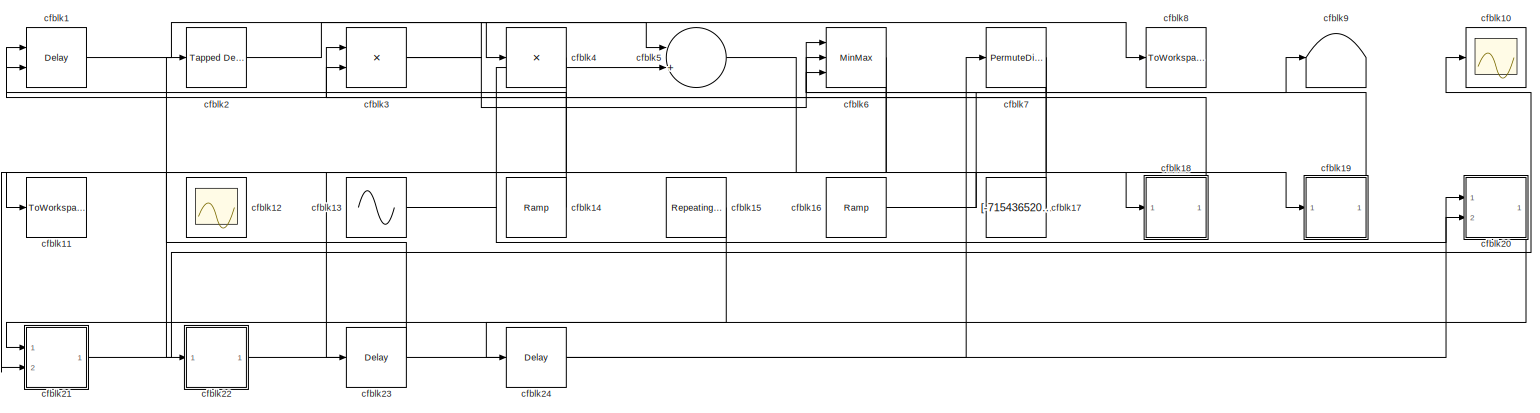
[diagram: root canvas - part 1/1, most of the canvas]
MODEL slx_92206972d1a9
KIND model
CONFIG AbsTol = auto
CONFIG EnableMultiTasking = off
CONFIG FixedStep = auto
CONFIG MaxStep = auto
CONFIG MinStep = auto
CONFIG RelTol = 1e-3
CONFIG SampleTimeConstraint = Unconstrained
CONFIG SolverName = VariableStepAuto
CONFIG StartTime = 0.0
CONFIG StopTime = 10.0
BLOCK [Delay] cfblk1
  DelayLengthSource = Input port
  InputPortMap = u0,p1
  Ports = [2, 1]
  SampleTime = 1
BLOCK [Scope] cfblk10
  Floating = off
  NumInputPorts = 1
  Ports = [1]
BLOCK [ToWorkspace] cfblk11
  FixptAsFi = on
  MaxDataPoints = inf
  Ports = [1]
  SampleTime = -1
  SaveFormat = Timeseries
  VariableName = uzeybga
BLOCK [Scope] cfblk12
  Floating = on
  NumInputPorts = 1
  Ports = []
BLOCK [Sin] cfblk13
  Amplitude = [343187068.625746]
  Bias = [809626460.034724]
  Ports = [0, 1]
  SampleTime = 0
BLOCK [Reference] cfblk14  REF=simulink/Sources/Ramp
  Ports = [0, 1]
  SourceBlock = simulink/Sources/Ramp
  SourceProductBaseCode = SL
  SourceType = Ramp
BLOCK [Reference] cfblk15  REF=simulink/Sources/Repeating
Sequence
  Ports = [0, 1]
  SourceBlock = simulink/Sources/Repeating\nSequence
  SourceProductBaseCode = SL
  SourceType = Repeating table
BLOCK [Reference] cfblk16  REF=simulink/Sources/Ramp
  Ports = [0, 1]
  SourceBlock = simulink/Sources/Ramp
  SourceProductBaseCode = SL
  SourceType = Ramp
BLOCK [Constant] cfblk17
  SampleTime = 1
  Value = [-715436520.365485]
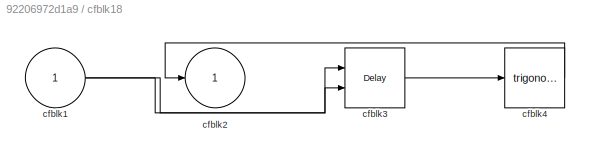
BLOCK [SubSystem] cfblk18
  Ports = [1, 1]
  RequestExecContextInheritance = off
BLOCK [Inport] cfblk18/cfblk1
BLOCK [Outport] cfblk18/cfblk2
BLOCK [Delay] cfblk18/cfblk3
  InputPortMap = u0,e6
  Ports = [2, 1]
  SampleTime = 1
  ShowEnablePort = on
BLOCK [Trigonometry] cfblk18/cfblk4
  Ports = [1, 1]
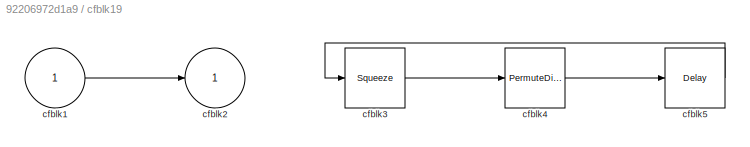
BLOCK [SubSystem] cfblk19
  Ports = [1, 1]
  RequestExecContextInheritance = off
BLOCK [Inport] cfblk19/cfblk1
BLOCK [Outport] cfblk19/cfblk2
BLOCK [Squeeze] cfblk19/cfblk3
BLOCK [PermuteDimensions] cfblk19/cfblk4
BLOCK [Delay] cfblk19/cfblk5
  InputPortMap = u0
  Ports = [1, 1]
  SampleTime = 1
BLOCK [Reference] cfblk2  REF=simulink/Discrete/Tapped Delay
  Ports = [1, 1]
  SourceBlock = simulink/Discrete/Tapped Delay
  SourceProductBaseCode = SL
  SourceType = Tapped Delay Line
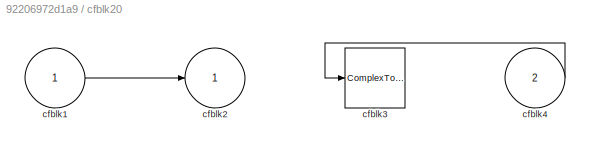
BLOCK [SubSystem] cfblk20
  Ports = [2, 1]
  RequestExecContextInheritance = off
BLOCK [Inport] cfblk20/cfblk1
BLOCK [Outport] cfblk20/cfblk2
BLOCK [ComplexToMagnitudeAngle] cfblk20/cfblk3
  Ports = [1, 2]
BLOCK [Inport] cfblk20/cfblk4
  Port = 2
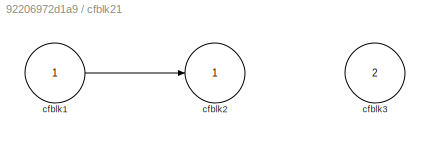
BLOCK [SubSystem] cfblk21
  Ports = [2, 1]
  RequestExecContextInheritance = off
BLOCK [Inport] cfblk21/cfblk1
BLOCK [Outport] cfblk21/cfblk2
BLOCK [Inport] cfblk21/cfblk3
  Port = 2
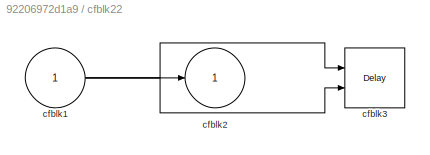
BLOCK [SubSystem] cfblk22
  Ports = [1, 1]
  RequestExecContextInheritance = off
BLOCK [Inport] cfblk22/cfblk1
BLOCK [Outport] cfblk22/cfblk2
BLOCK [Delay] cfblk22/cfblk3
  InputPortMap = u0,e6
  Ports = [2, 1]
  SampleTime = 1
  ShowEnablePort = on
BLOCK [Delay] cfblk23
  InputPortMap = u0
  Ports = [1, 1]
  SampleTime = 1
BLOCK [Delay] cfblk24
  InputPortMap = u0
  Ports = [1, 1]
  SampleTime = 1
BLOCK [Product] cfblk3
  Inputs = **
  Ports = [2, 1]
BLOCK [Product] cfblk4
  Inputs = *
  Ports = [1, 1]
BLOCK [Sum] cfblk5
  Inputs = |++
  Ports = [2, 1]
BLOCK [MinMax] cfblk6
  Inputs = 3
  Ports = [3, 1]
BLOCK [PermuteDimensions] cfblk7
BLOCK [ToWorkspace] cfblk8
  FixptAsFi = on
  MaxDataPoints = inf
  Ports = [1]
  SampleTime = -1
  SaveFormat = Timeseries
  VariableName = ehgoouw
BLOCK [Terminator] cfblk9
NET cfblk13:1 -> cfblk20:1, cfblk5:2
LINE cfblk14:1 -> cfblk1:1
LINE cfblk15:1 -> cfblk21:1
NET cfblk16:1 -> cfblk18:1, cfblk9:1
LINE cfblk17:1 -> cfblk3:2
NET cfblk18/cfblk1:1 -> cfblk18/cfblk3:1, cfblk18/cfblk3:2
LINE cfblk18/cfblk3:1 -> cfblk18/cfblk4:1
LINE cfblk18/cfblk4:1 -> cfblk18/cfblk2:1
LINE cfblk18:1 -> cfblk3:1
LINE cfblk19/cfblk1:1 -> cfblk19/cfblk2:1
LINE cfblk19/cfblk3:1 -> cfblk19/cfblk4:1
LINE cfblk19/cfblk4:1 -> cfblk19/cfblk5:1
LINE cfblk19/cfblk5:1 -> cfblk19/cfblk3:1
LINE cfblk19:1 -> cfblk6:1
LINE cfblk1:1 -> cfblk4:1
LINE cfblk20/cfblk1:1 -> cfblk20/cfblk2:1
LINE cfblk20/cfblk4:1 -> cfblk20/cfblk3:1
LINE cfblk20:1 -> cfblk24:1
LINE cfblk21/cfblk1:1 -> cfblk21/cfblk2:1
LINE cfblk21:1 -> cfblk10:1
NET cfblk22/cfblk1:1 -> cfblk22/cfblk2:1, cfblk22/cfblk3:1, cfblk22/cfblk3:2
LINE cfblk22:1 -> cfblk20:2
LINE cfblk23:1 -> cfblk2:1
LINE cfblk24:1 -> cfblk7:1
LINE cfblk2:1 -> cfblk5:1
NET cfblk3:1 -> cfblk6:3, cfblk8:1
LINE cfblk4:1 -> cfblk11:1
LINE cfblk5:1 -> cfblk19:1
NET cfblk6:1 -> cfblk21:2, cfblk23:1
NET cfblk7:1 -> cfblk1:2, cfblk22:1, cfblk6:2
note: NET lines group one-source signal fan-out (src -> all destinations, sorted); 1:1 wires keep LINE
